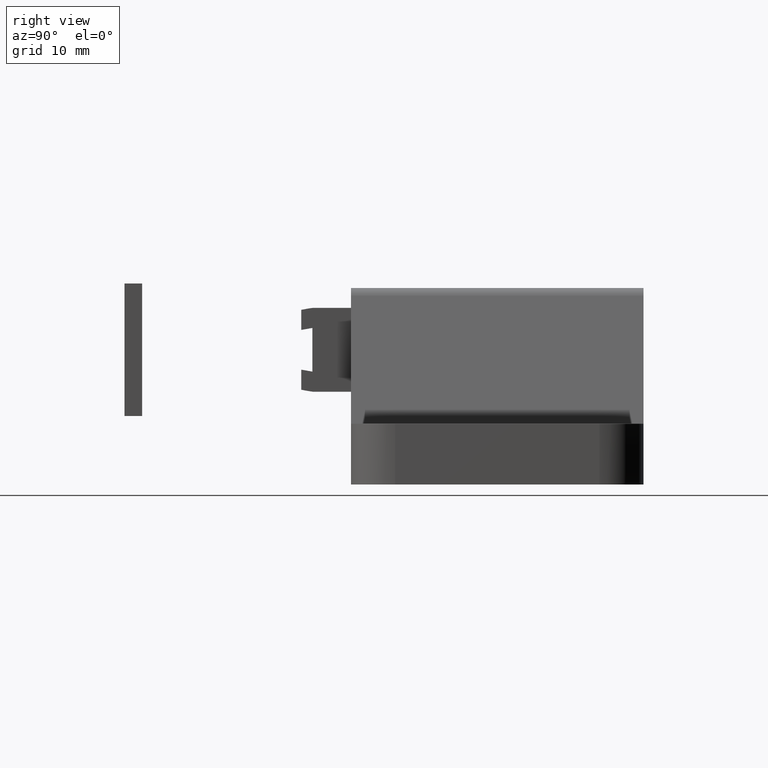
[diagram: clean part render]
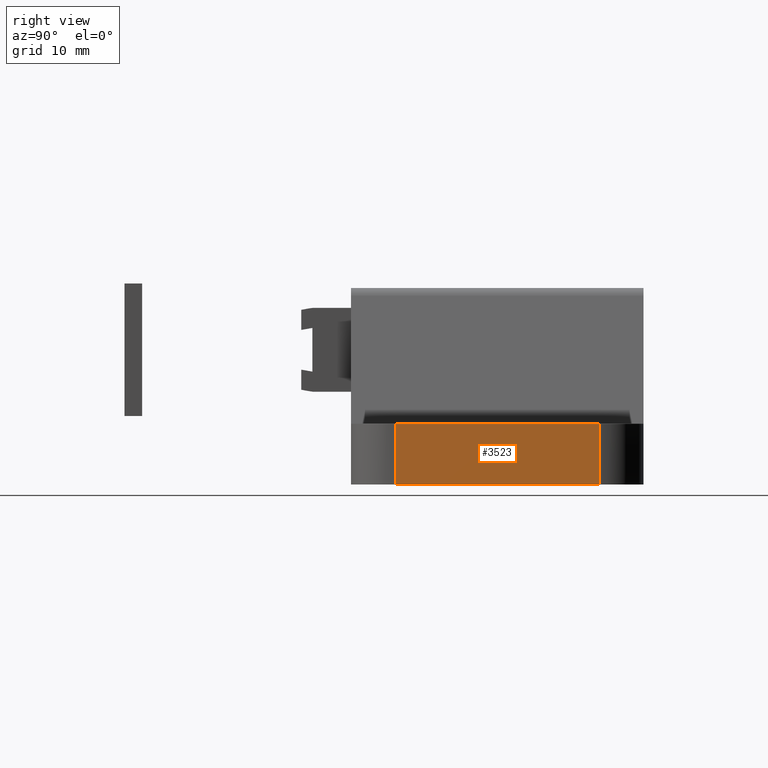
[diagram: same view with one face highlighted and labeled with its STEP entity id]
A machine part, right view. The second image highlights one B-rep face of the part: STEP entity #3523.
In plain terms, the highlighted face is a freeform B-spline surface patch.
Its self-contained STEP definition (entity closure, byte-faithful):
#1648=CARTESIAN_POINT('',(21.500004000000001,-22.500000000000000,5.500000000000000));
#1649=VERTEX_POINT('',#1648);
#1671=CARTESIAN_POINT('',(21.500004000000001,-22.500000000000000,0.0));
#1672=VERTEX_POINT('',#1671);
#1687=CARTESIAN_POINT('',(21.500004000000001,-22.500000000000000,5.500000000000000));
#1688=CARTESIAN_POINT('',(21.500004000000001,-22.500000000000000,0.0));
#1689=QUASI_UNIFORM_CURVE('',1,(#1687,#1688),.UNSPECIFIED.,.F.,.U.);
#1690=EDGE_CURVE('',#1649,#1672,#1689,.T.);
#1709=CARTESIAN_POINT('',(21.500004000000001,-4.0,5.500000000000000));
#1710=VERTEX_POINT('',#1709);
#1727=CARTESIAN_POINT('',(21.500004000000001,-4.0,0.0));
#1728=VERTEX_POINT('',#1727);
#1729=CARTESIAN_POINT('',(21.500004000000001,-4.0,0.0));
#1730=CARTESIAN_POINT('',(21.500004000000001,-4.0,5.500000000000000));
#1731=QUASI_UNIFORM_CURVE('',1,(#1729,#1730),.UNSPECIFIED.,.F.,.U.);
#1732=EDGE_CURVE('',#1728,#1710,#1731,.T.);
#3504=CARTESIAN_POINT('',(21.500004000000001,-23.424074964143411,5.774724989339934));
#3505=CARTESIAN_POINT('',(21.500004000000001,-23.424074964143411,-0.274725136861429));
#3506=CARTESIAN_POINT('',(21.500004000000001,-3.075924539647923,5.774724989339934));
#3507=CARTESIAN_POINT('',(21.500004000000001,-3.075924539647923,-0.274725136861429));
#3508=B_SPLINE_SURFACE_WITH_KNOTS('',1,1,((#3504,#3506),(#3505,#3507)),.UNSPECIFIED.,.F.,.F.,.U.,(2,2),(2,2),(0.0,6.049450126201363),(0.0,20.348150424495490),.UNSPECIFIED.);
#3509=CARTESIAN_POINT('',(21.500004000000001,-4.0,0.0));
#3510=CARTESIAN_POINT('',(21.500004000000001,-22.500000000000000,0.0));
#3511=QUASI_UNIFORM_CURVE('',1,(#3509,#3510),.UNSPECIFIED.,.F.,.U.);
#3512=EDGE_CURVE('',#1728,#1672,#3511,.T.);
#3513=ORIENTED_EDGE('',*,*,#3512,.F.);
#3514=ORIENTED_EDGE('',*,*,#1732,.T.);
#3515=CARTESIAN_POINT('',(21.500004000000001,-4.0,5.500000000000000));
#3516=CARTESIAN_POINT('',(21.500004000000001,-22.500000000000000,5.500000000000000));
#3517=QUASI_UNIFORM_CURVE('',1,(#3515,#3516),.UNSPECIFIED.,.F.,.U.);
#3518=EDGE_CURVE('',#1710,#1649,#3517,.T.);
#3519=ORIENTED_EDGE('',*,*,#3518,.T.);
#3520=ORIENTED_EDGE('',*,*,#1690,.T.);
#3521=EDGE_LOOP('',(#3513,#3514,#3519,#3520));
#3522=FACE_OUTER_BOUND('',#3521,.T.);
#3523=ADVANCED_FACE('',(#3522),#3508,.T.);